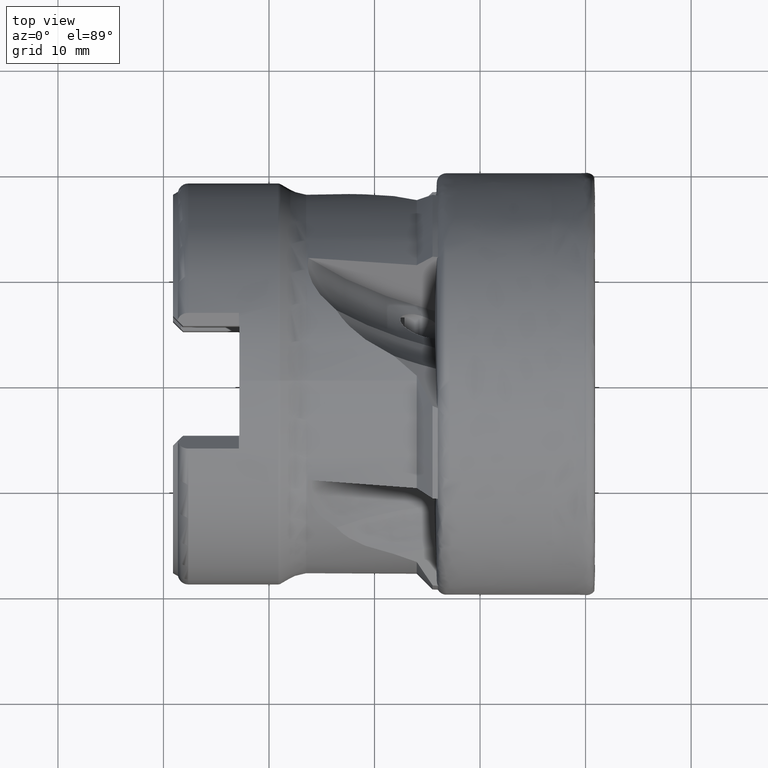
[diagram: clean part render]
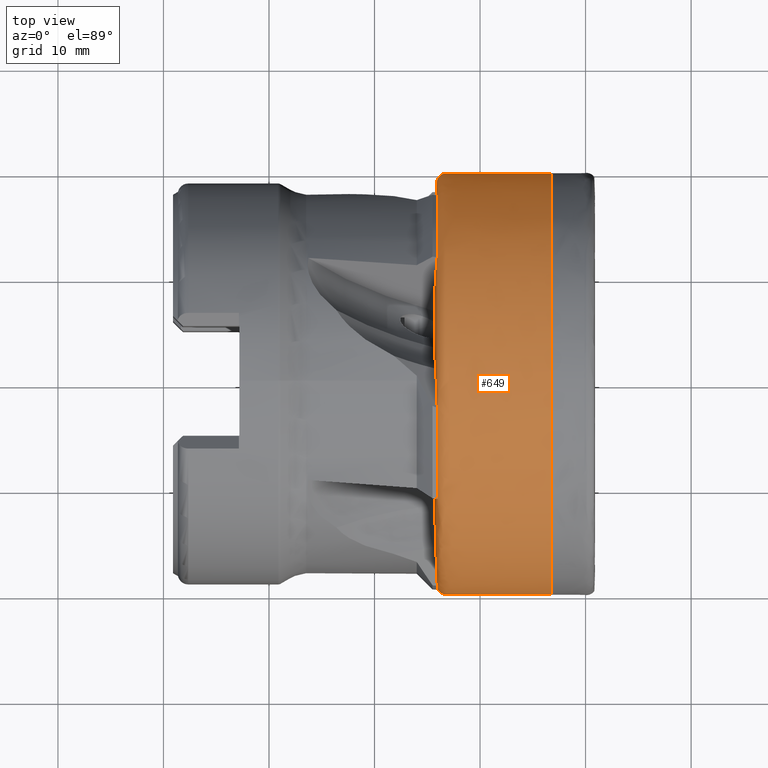
[diagram: same view with one face highlighted and labeled with its STEP entity id]
A machine part, top view. The second image highlights one B-rep face of the part: STEP entity #649.
In plain terms, the highlighted face is a freeform B-spline surface patch.
Its self-contained STEP definition (entity closure, byte-faithful):
#41 = VERTEX_POINT ( 'NONE', #5457 ) ;
#47 = VERTEX_POINT ( 'NONE', #5465 ) ;
#53 = VERTEX_POINT ( 'NONE', #5403 ) ;
#60 = VERTEX_POINT ( 'NONE', #5438 ) ;
#76 = VERTEX_POINT ( 'NONE', #5391 ) ;
#170 = VERTEX_POINT ( 'NONE', #5788 ) ;
#186 = VERTEX_POINT ( 'NONE', #5847 ) ;
#188 = VERTEX_POINT ( 'NONE', #5835 ) ;
#193 = VERTEX_POINT ( 'NONE', #5842 ) ;
#194 = VERTEX_POINT ( 'NONE', #5841 ) ;
#201 = VERTEX_POINT ( 'NONE', #5821 ) ;
#209 = VERTEX_POINT ( 'NONE', #5808 ) ;
#212 = VERTEX_POINT ( 'NONE', #5809 ) ;
#411 = VERTEX_POINT ( 'NONE', #5889 ) ;
#649 = ADVANCED_FACE ( 'NONE', ( #1496 ), #5939, .F. ) ;
#816 = AXIS2_PLACEMENT_3D ( 'NONE', #2239, #2240, #2241 ) ;
#819 = AXIS2_PLACEMENT_3D ( 'NONE', #2284, #2285, #2286 ) ;
#823 = AXIS2_PLACEMENT_3D ( 'NONE', #2459, #2460, #2461 ) ;
#824 = AXIS2_PLACEMENT_3D ( 'NONE', #2710, #2711, #2712 ) ;
#882 = AXIS2_PLACEMENT_3D ( 'NONE', #4060, #4061, #4062 ) ;
#916 = AXIS2_PLACEMENT_3D ( 'NONE', #4240, #4241, #4242 ) ;
#968 = AXIS2_PLACEMENT_3D ( 'NONE', #4773, #4774, #4775 ) ;
#1154 = VERTEX_POINT ( 'NONE', #6249 ) ;
#1266 = VERTEX_POINT ( 'NONE', #6256 ) ;
#1308 = VERTEX_POINT ( 'NONE', #6247 ) ;
#1309 = ORIENTED_EDGE ( 'NONE', *, *, #6037, .F. ) ;
#1310 = ORIENTED_EDGE ( 'NONE', *, *, #5574, .F. ) ;
#1311 = ORIENTED_EDGE ( 'NONE', *, *, #6178, .T. ) ;
#1312 = ORIENTED_EDGE ( 'NONE', *, *, #1602, .F. ) ;
#1313 = ORIENTED_EDGE ( 'NONE', *, *, #6044, .F. ) ;
#1314 = ORIENTED_EDGE ( 'NONE', *, *, #6035, .F. ) ;
#1315 = ORIENTED_EDGE ( 'NONE', *, *, #1638, .T. ) ;
#1316 = ORIENTED_EDGE ( 'NONE', *, *, #6012, .F. ) ;
#1326 = ORIENTED_EDGE ( 'NONE', *, *, #1671, .F. ) ;
#1327 = ORIENTED_EDGE ( 'NONE', *, *, #6033, .T. ) ;
#1328 = ORIENTED_EDGE ( 'NONE', *, *, #1595, .T. ) ;
#1329 = ORIENTED_EDGE ( 'NONE', *, *, #6016, .F. ) ;
#1330 = ORIENTED_EDGE ( 'NONE', *, *, #6047, .F. ) ;
#1331 = ORIENTED_EDGE ( 'NONE', *, *, #5763, .F. ) ;
#1332 = ORIENTED_EDGE ( 'NONE', *, *, #5772, .T. ) ;
#1333 = ORIENTED_EDGE ( 'NONE', *, *, #1615, .T. ) ;
#1334 = ORIENTED_EDGE ( 'NONE', *, *, #6030, .F. ) ;
#1496 = FACE_OUTER_BOUND ( 'NONE', #5734, .T. ) ;
#1595 = EDGE_CURVE ( 'NONE', #53, #60, #1723, .T. ) ;
#1602 = EDGE_CURVE ( 'NONE', #1154, #1308, #1720, .T. ) ;
#1615 = EDGE_CURVE ( 'NONE', #47, #41, #1722, .T. ) ;
#1638 = EDGE_CURVE ( 'NONE', #411, #76, #1726, .T. ) ;
#1671 = EDGE_CURVE ( 'NONE', #411, #1154, #5966, .T. ) ;
#1720 = CIRCLE ( 'NONE', #819, 19.97110165175830700 ) ;
#1722 = CIRCLE ( 'NONE', #823, 14.69634771529313600 ) ;
#1723 = CIRCLE ( 'NONE', #816, 14.69634771529313600 ) ;
#1726 = CIRCLE ( 'NONE', #824, 14.69634771529313600 ) ;
#1877 = CIRCLE ( 'NONE', #882, 19.50000000000000000 ) ;
#1951 = CIRCLE ( 'NONE', #916, 19.50000000000000000 ) ;
#2041 = CIRCLE ( 'NONE', #968, 19.50000000000000000 ) ;
#2239 = CARTESIAN_POINT ( 'NONE',  ( -14.26800032783875100, -2.686170997466963100E-015, 0.0000000000000000000 ) ) ;
#2240 = DIRECTION ( 'NONE',  ( 1.000000000000000000, 1.224147607940514700E-016, -0.0000000000000000000 ) ) ;
#2241 = DIRECTION ( 'NONE',  ( 2.360754535185147000E-016, -1.000000000000000000, 0.0000000000000000000 ) ) ;
#2284 = CARTESIAN_POINT ( 'NONE',  ( -3.209301626552753600, -1.332423041255550500E-015, 0.0000000000000000000 ) ) ;
#2285 = DIRECTION ( 'NONE',  ( 1.000000000000000000, 1.224147607940514700E-016, -0.0000000000000000000 ) ) ;
#2286 = DIRECTION ( 'NONE',  ( 6.514626131643860900E-017, -1.000000000000000000, 0.0000000000000000000 ) ) ;
#2459 = CARTESIAN_POINT ( 'NONE',  ( -14.26800032783875100, -2.686170997466963100E-015, 0.0000000000000000000 ) ) ;
#2460 = DIRECTION ( 'NONE',  ( 1.000000000000000000, 1.224147607940514700E-016, -0.0000000000000000000 ) ) ;
#2461 = DIRECTION ( 'NONE',  ( 2.360754535185147000E-016, -1.000000000000000000, 0.0000000000000000000 ) ) ;
#2710 = CARTESIAN_POINT ( 'NONE',  ( -14.26800032783875100, -2.686170997466963100E-015, 0.0000000000000000000 ) ) ;
#2711 = DIRECTION ( 'NONE',  ( 1.000000000000000000, 1.224147607940514700E-016, -0.0000000000000000000 ) ) ;
#2712 = DIRECTION ( 'NONE',  ( 2.360754535185147000E-016, -1.000000000000000000, 0.0000000000000000000 ) ) ;
#2913 = CARTESIAN_POINT ( 'NONE',  ( -14.26800032783875200, 14.69634771529313300, -1.799783518868518300E-015 ) ) ;
#2914 = CARTESIAN_POINT ( 'NONE',  ( -14.21580608215866600, 16.05574012467806700, -1.966261075162872100E-015 ) ) ;
#2926 = CARTESIAN_POINT ( 'NONE',  ( -14.16361183647857500, 17.41513253406299800, -2.132738631456719100E-015 ) ) ;
#2927 = CARTESIAN_POINT ( 'NONE',  ( -14.11141759079848300, 18.77452494344793300, -2.299216187750565700E-015 ) ) ;
#2928 = CARTESIAN_POINT ( 'NONE',  ( -14.10851882015919200, 18.85002305156809400, -2.308462039395669500E-015 ) ) ;
#2929 = CARTESIAN_POINT ( 'NONE',  ( -14.10272127888059600, 19.00101926780841700, -2.326953742685876300E-015 ) ) ;
#2930 = CARTESIAN_POINT ( 'NONE',  ( -14.09591330335324600, 19.23392777741435100, -2.355476808764185400E-015 ) ) ;
#2931 = CARTESIAN_POINT ( 'NONE',  ( -14.05106470714620000, 19.37955548754512600, -2.373311059672066700E-015 ) ) ;
#2932 = CARTESIAN_POINT ( 'NONE',  ( -14.01971025009153800, 19.44829605216129700, -2.381729350914944000E-015 ) ) ;
#2933 = CARTESIAN_POINT ( 'NONE',  ( -13.92271262157696300, 19.66095072319892300, -2.407772037135940400E-015 ) ) ;
#2934 = CARTESIAN_POINT ( 'NONE',  ( -13.75104970425022800, 19.82127491330401300, -2.427406087759749100E-015 ) ) ;
#2935 = CARTESIAN_POINT ( 'NONE',  ( -13.52821628863966900, 19.90732571645001800, -2.437944271823431000E-015 ) ) ;
#2936 = CARTESIAN_POINT ( 'NONE',  ( -13.45566115145857100, 19.93534408079494500, -2.441375531844667100E-015 ) ) ;
#2937 = CARTESIAN_POINT ( 'NONE',  ( -13.30353024252727100, 19.97320047968438700, -2.446011603617386900E-015 ) ) ;
#2938 = CARTESIAN_POINT ( 'NONE',  ( -13.06446505624465400, 19.97110165175830300, -2.445754571327222900E-015 ) ) ;
#2939 = CARTESIAN_POINT ( 'NONE',  ( -12.90891086411942200, 19.97110165175830700, -2.445754571327223700E-015 ) ) ;
#2940 = CARTESIAN_POINT ( 'NONE',  ( -12.83113376805680700, 19.97110165175830300, -2.445754571327223300E-015 ) ) ;
#2941 = CARTESIAN_POINT ( 'NONE',  ( -9.623856387555456100, 19.97110165175830300, -2.445754571327223300E-015 ) ) ;
#2942 = CARTESIAN_POINT ( 'NONE',  ( -6.416579007054106200, 19.97110165175830700, -2.445754571327223300E-015 ) ) ;
#2943 = CARTESIAN_POINT ( 'NONE',  ( -3.209301626552756300, 19.97110165175831000, -2.445754571327223300E-015 ) ) ;
#3973 = B_SPLINE_CURVE_WITH_KNOTS ( 'NONE', 3,
 ( #4266, #4267, #4272, #4273, #4274, #4275, #4276, #4277, #4278, #4279, #4280 ),
 .UNSPECIFIED., .F., .F.,
 ( 4, 2, 2, 2, 1, 4 ),
 ( 7.111467947168715000E-005, 0.0003723832862610233500, 0.0006736518930503596200, 0.001276189106629031800, 0.002481263533786379300, 0.004891412388101071600 ),
 .UNSPECIFIED. ) ;
#3999 = B_SPLINE_CURVE_WITH_KNOTS ( 'NONE', 3,
 ( #4508, #4560, #4565, #4566, #4567, #4568 ),
 .UNSPECIFIED., .F., .F.,
 ( 4, 2, 4 ),
 ( 3.034133145081244000E-016, 0.001254293743624459200, 0.002508587487248611300 ),
 .UNSPECIFIED. ) ;
#4002 = B_SPLINE_CURVE_WITH_KNOTS ( 'NONE', 3,
 ( #4569, #4577, #4588, #4589, #4590, #4591, #4592, #4593, #4594, #4595, #4596, #4597 ),
 .UNSPECIFIED., .F., .F.,
 ( 4, 2, 2, 2, 2, 4 ),
 ( 0.0005273628585436776400, 0.001096369417611880200, 0.001380872697145982000, 0.001665375976680083400, 0.002803389094816484400, 0.005079415331089286500 ),
 .UNSPECIFIED. ) ;
#4009 = B_SPLINE_CURVE_WITH_KNOTS ( 'NONE', 3,
 ( #4637, #4645, #4672, #4673, #4674, #4675 ),
 .UNSPECIFIED., .F., .F.,
 ( 4, 2, 4 ),
 ( 1.777054657484526000E-016, 0.001254293743624378100, 0.002508587487248578300 ),
 .UNSPECIFIED. ) ;
#4011 = B_SPLINE_CURVE_WITH_KNOTS ( 'NONE', 3,
 ( #4679, #4680, #4685, #4686, #4687, #4688, #4689, #4690, #4691, #4692, #4693 ),
 .UNSPECIFIED., .F., .F.,
 ( 4, 2, 2, 2, 1, 4 ),
 ( 7.111467947168597100E-005, 0.0003723832862610313700, 0.0006736518930503767500, 0.001276189106629060000, 0.002481263533786419200, 0.004891412388101137500 ),
 .UNSPECIFIED. ) ;
#4013 = B_SPLINE_CURVE_WITH_KNOTS ( 'NONE', 3,
 ( #4695, #4694, #4707, #4708, #4709, #4710, #4711, #4712, #4713, #4714, #4715, #4716 ),
 .UNSPECIFIED., .F., .F.,
 ( 4, 2, 2, 2, 2, 4 ),
 ( 0.0005273628585410930100, 0.001096369417609764700, 0.001380872697144101300, 0.001665375976678437300, 0.002803389094815786200, 0.005079415331090490400 ),
 .UNSPECIFIED. ) ;
#4014 = B_SPLINE_CURVE_WITH_KNOTS ( 'NONE', 3,
 ( #4717, #4718, #4723, #4724, #4725, #4726, #4727, #4728, #4729, #4730, #4731, #4732 ),
 .UNSPECIFIED., .F., .F.,
 ( 4, 2, 2, 2, 2, 4 ),
 ( 0.0005273628585470978600, 0.001096369417615530500, 0.001380872697149746800, 0.001665375976683963100, 0.002803389094820835500, 0.005079415331094578300 ),
 .UNSPECIFIED. ) ;
#4019 = B_SPLINE_CURVE_WITH_KNOTS ( 'NONE', 3,
 ( #4754, #4755, #4760, #4761, #4762, #4763 ),
 .UNSPECIFIED., .F., .F.,
 ( 4, 2, 4 ),
 ( 4.926097358014250200E-017, 0.001254293743624316700, 0.002508587487248584400 ),
 .UNSPECIFIED. ) ;
#4041 =( BOUNDED_CURVE ( )  B_SPLINE_CURVE ( 3, ( #5171, #5172, #5177, #5178, #5179, #5180, #5181, #5182, #5183, #5184, #5185, #5186 ),
 .UNSPECIFIED., .F., .F. ) 
 B_SPLINE_CURVE_WITH_KNOTS ( ( 4, 3, 1, 1, 3, 4 ),
 ( 0.1551371755131661900, 0.1748335582058125300, 0.1821841475971367800, 0.1895347369884609900, 0.1968853263797852300, 0.5000000000000000000 ),
 .UNSPECIFIED. ) 
 CURVE ( )  GEOMETRIC_REPRESENTATION_ITEM ( )  RATIONAL_B_SPLINE_CURVE ( ( 0.9892622004134785700, 0.9547140600188639400, 0.9582933265477044900, 1.000000000000000000, 1.000000000000000000, 1.000000000000000000, 1.000000000000000000, 1.000000000000000000, 1.000000000000000000, 1.000000000000000000, 1.000000000000000000, 1.000000000000000000 ) ) 
 REPRESENTATION_ITEM ( '' )  );
#4060 = CARTESIAN_POINT ( 'NONE',  ( -13.99402628904241300, -2.652632531043929400E-015, 0.0000000000000000000 ) ) ;
#4061 = DIRECTION ( 'NONE',  ( -1.000000000000000000, -1.224147607940514700E-016, 0.0000000000000000000 ) ) ;
#4062 = DIRECTION ( 'NONE',  ( -8.896017825522088100E-017, 1.000000000000000000, 0.0000000000000000000 ) ) ;
#4240 = CARTESIAN_POINT ( 'NONE',  ( -13.99402628904241300, -2.652632531043929400E-015, 0.0000000000000000000 ) ) ;
#4241 = DIRECTION ( 'NONE',  ( -1.000000000000000000, -1.224147607940514700E-016, 0.0000000000000000000 ) ) ;
#4242 = DIRECTION ( 'NONE',  ( -8.896017825522088100E-017, 1.000000000000000000, 3.552713678800500900E-015 ) ) ;
#4266 = CARTESIAN_POINT ( 'NONE',  ( -13.99402628904241500, -11.16282670107047400, 15.98878669699073100 ) ) ;
#4267 = CARTESIAN_POINT ( 'NONE',  ( -14.04177573269446800, -11.10729541618247800, 15.91946168751539000 ) ) ;
#4272 = CARTESIAN_POINT ( 'NONE',  ( -14.07413387450636400, -11.04776896731670800, 15.84234689433353100 ) ) ;
#4273 = CARTESIAN_POINT ( 'NONE',  ( -14.10284375111478800, -10.92836796405926600, 15.68227882239864000 ) ) ;
#4274 = CARTESIAN_POINT ( 'NONE',  ( -14.10248798662355600, -10.86921448308165800, 15.60080808702304700 ) ) ;
#4275 = CARTESIAN_POINT ( 'NONE',  ( -14.11352642977215100, -10.69130388572579400, 15.35757817006916200 ) ) ;
#4276 = CARTESIAN_POINT ( 'NONE',  ( -14.12150763103672100, -10.57267368257386100, 15.19548566197628900 ) ) ;
#4277 = CARTESIAN_POINT ( 'NONE',  ( -14.14463961406317900, -10.21681325440901700, 14.70912887330857000 ) ) ;
#4278 = CARTESIAN_POINT ( 'NONE',  ( -14.19090268853979900, -9.505092444192609200, 13.73641522673631200 ) ) ;
#4279 = CARTESIAN_POINT ( 'NONE',  ( -14.23716260649884900, -8.793371772533657100, 12.76370130104139700 ) ) ;
#4280 = CARTESIAN_POINT ( 'NONE',  ( -14.26800032783874700, -8.318891445214006800, 12.11522518534208000 ) ) ;
#4508 = CARTESIAN_POINT ( 'NONE',  ( -14.18631093673279900, 16.38905425615517700, 3.800496006708649500 ) ) ;
#4560 = CARTESIAN_POINT ( 'NONE',  ( -14.20124454978105900, 16.04565309455056600, 3.559593312194226000 ) ) ;
#4565 = CARTESIAN_POINT ( 'NONE',  ( -14.21562142229881200, 15.71984105028122900, 3.297789811377370500 ) ) ;
#4566 = CARTESIAN_POINT ( 'NONE',  ( -14.24302521189785700, 15.10314685852142700, 2.732663496578172400 ) ) ;
#4567 = CARTESIAN_POINT ( 'NONE',  ( -14.25605197436113000, 14.81228025361912000, 2.428892670520108200 ) ) ;
#4568 = CARTESIAN_POINT ( 'NONE',  ( -14.26800032779129900, 14.54411533310348200, 2.109821165207939100 ) ) ;
#4569 = CARTESIAN_POINT ( 'NONE',  ( -13.99402628904241500, 17.71115096916131300, 8.158745696954660800 ) ) ;
#4577 = CARTESIAN_POINT ( 'NONE',  ( -14.05334780861715800, 17.67172998627272000, 7.981148113705935500 ) ) ;
#4588 = CARTESIAN_POINT ( 'NONE',  ( -14.08544226921973000, 17.62354644874891500, 7.799543349084122400 ) ) ;
#4589 = CARTESIAN_POINT ( 'NONE',  ( -14.10087603275969800, 17.54175298056676600, 7.527382942168141100 ) ) ;
#4590 = CARTESIAN_POINT ( 'NONE',  ( -14.10215117010847100, 17.51330479493738000, 7.436481422721994000 ) ) ;
#4591 = CARTESIAN_POINT ( 'NONE',  ( -14.10644607932190000, 17.45694872257691100, 7.254728546434483500 ) ) ;
#4592 = CARTESIAN_POINT ( 'NONE',  ( -14.10876805021913100, 17.42882543506134100, 7.163839217656715200 ) ) ;
#4593 = CARTESIAN_POINT ( 'NONE',  ( -14.12033719955721300, 17.28823238766319300, 6.709384399919476200 ) ) ;
#4594 = CARTESIAN_POINT ( 'NONE',  ( -14.12932922248565300, 17.17579482492228800, 6.345803052757132100 ) ) ;
#4595 = CARTESIAN_POINT ( 'NONE',  ( -14.15540472283816900, 16.83855027085011700, 5.255017109960598500 ) ) ;
#4596 = CARTESIAN_POINT ( 'NONE',  ( -14.17159632296116800, 16.61381451867277900, 4.527769854031767200 ) ) ;
#4597 = CARTESIAN_POINT ( 'NONE',  ( -14.18631093673279900, 16.38905425615517700, 3.800496006708649500 ) ) ;
#4637 = CARTESIAN_POINT ( 'NONE',  ( -14.18631093673279300, -15.60500225378719500, 6.287191262201723400 ) ) ;
#4645 = CARTESIAN_POINT ( 'NONE',  ( -14.20124454978105400, -15.18552838122047200, 6.287560382376040200 ) ) ;
#4672 = CARTESIAN_POINT ( 'NONE',  ( -14.21562142229881000, -14.76847446008062700, 6.315139143999915400 ) ) ;
#4673 = CARTESIAN_POINT ( 'NONE',  ( -14.24302521189785500, -13.93916501446868500, 6.424342263221209500 ) ) ;
#4674 = CARTESIAN_POINT ( 'NONE',  ( -14.25605197436112600, -13.52666525256973200, 6.506342525688629600 ) ) ;
#4675 = CARTESIAN_POINT ( 'NONE',  ( -14.26800032779129700, -13.12398551276461900, 6.613897522075746800 ) ) ;
#4679 = CARTESIAN_POINT ( 'NONE',  ( -13.99402628904241300, 11.75673661993313400, 15.55728588313280100 ) ) ;
#4680 = CARTESIAN_POINT ( 'NONE',  ( -14.04177573269446100, 11.70796472867926100, 15.48304988671874800 ) ) ;
#4685 = CARTESIAN_POINT ( 'NONE',  ( -14.07413387450636400, 11.65301888643521300, 15.40260708802214000 ) ) ;
#4686 = CARTESIAN_POINT ( 'NONE',  ( -14.10284375111478600, 11.53768204272269100, 15.23958623133726100 ) ) ;
#4687 = CARTESIAN_POINT ( 'NONE',  ( -14.10248798662355600, 11.47847819985489800, 15.15815208601668300 ) ) ;
#4688 = CARTESIAN_POINT ( 'NONE',  ( -14.11352642977215100, 11.30213020044034200, 14.91378687520426600 ) ) ;
#4689 = CARTESIAN_POINT ( 'NONE',  ( -14.12150763103672100, 11.18462981319608000, 14.75087350780564500 ) ) ;
#4690 = CARTESIAN_POINT ( 'NONE',  ( -14.14463961406318000, 10.83204394001774100, 14.26213761567993300 ) ) ;
#4691 = CARTESIAN_POINT ( 'NONE',  ( -14.19090268853980100, 10.12687211356315100, 13.28466585388949800 ) ) ;
#4692 = CARTESIAN_POINT ( 'NONE',  ( -14.23716260649885100, 9.421699978830517400, 12.30719413762138900 ) ) ;
#4693 = CARTESIAN_POINT ( 'NONE',  ( -14.26800032783875100, 8.951585027971273000, 11.65554639027283700 ) ) ;
#4694 = CARTESIAN_POINT ( 'NONE',  ( -14.05334780861715100, -2.465696077695992600, 19.23302131161604600 ) ) ;
#4695 = CARTESIAN_POINT ( 'NONE',  ( -13.99402628904241300, -2.624007911235298100, 19.32264429320621300 ) ) ;
#4707 = CARTESIAN_POINT ( 'NONE',  ( -14.08544226921975600, -2.306114080587836400, 19.13384707090457600 ) ) ;
#4708 = CARTESIAN_POINT ( 'NONE',  ( -14.10087603275969700, -2.069759884796846800, 18.97605558614720800 ) ) ;
#4709 = CARTESIAN_POINT ( 'NONE',  ( -14.10215117010846900, -1.991147773954988500, 18.92227341872893500 ) ) ;
#4710 = CARTESIAN_POINT ( 'NONE',  ( -14.10644607932189800, -1.833813554898807500, 18.81524044042479500 ) ) ;
#4711 = CARTESIAN_POINT ( 'NONE',  ( -14.10876805021913100, -1.755118111035685300, 18.76177253882448800 ) ) ;
#4712 = CARTESIAN_POINT ( 'NONE',  ( -14.12033719955720200, -1.361626236403261000, 18.49445300916102400 ) ) ;
#4713 = CARTESIAN_POINT ( 'NONE',  ( -14.12932922248565500, -1.046805226825931400, 18.28062753488779200 ) ) ;
#4714 = CARTESIAN_POINT ( 'NONE',  ( -14.15540472283816700, -0.1022822071746422000, 17.63920401832300700 ) ) ;
#4715 = CARTESIAN_POINT ( 'NONE',  ( -14.17159632296116300, 0.5274814274548641500, 17.21166162971011800 ) ) ;
#4716 = CARTESIAN_POINT ( 'NONE',  ( -14.18631093673279500, 1.157263325431218800, 16.78408802717096300 ) ) ;
#4717 = CARTESIAN_POINT ( 'NONE',  ( -13.99402628904241100, -19.18778980505310700, 3.475445640072682500 ) ) ;
#4718 = CARTESIAN_POINT ( 'NONE',  ( -14.05334780861720200, -19.05363223742753900, 3.598314116568815300 ) ) ;
#4723 = CARTESIAN_POINT ( 'NONE',  ( -14.08544226921973700, -18.90999838044779200, 3.719439089017662100 ) ) ;
#4724 = CARTESIAN_POINT ( 'NONE',  ( -14.10087603275969500, -18.68689229746218700, 3.895465036720684000 ) ) ;
#4725 = CARTESIAN_POINT ( 'NONE',  ( -14.10215117010846500, -18.61144993846473400, 3.953609993270009100 ) ) ;
#4726 = CARTESIAN_POINT ( 'NONE',  ( -14.10644607932189500, -18.46103657950502000, 4.070168718285064100 ) ) ;
#4727 = CARTESIAN_POINT ( 'NONE',  ( -14.10876805021912400, -18.38586735374183300, 4.128490042725752000 ) ) ;
#4728 = CARTESIAN_POINT ( 'NONE',  ( -14.12033719955719000, -18.01003569671255600, 4.420116776609807700 ) ) ;
#4729 = CARTESIAN_POINT ( 'NONE',  ( -14.12932922248565500, -17.70939054390941100, 4.653453643854264000 ) ) ;
#4730 = CARTESIAN_POINT ( 'NONE',  ( -14.15540472283816500, -16.80748686412487200, 5.353537649274185700 ) ) ;
#4731 = CARTESIAN_POINT ( 'NONE',  ( -14.17159632296116300, -16.20626222390228600, 5.820360593817272700 ) ) ;
#4732 = CARTESIAN_POINT ( 'NONE',  ( -14.18631093673279300, -15.60500225378719500, 6.287191262201723400 ) ) ;
#4754 = CARTESIAN_POINT ( 'NONE',  ( -14.18631093673279500, 1.157263325431218800, 16.78408802717096300 ) ) ;
#4755 = CARTESIAN_POINT ( 'NONE',  ( -14.20124454978104600, 1.287238934897816800, 16.38525873165754700 ) ) ;
#4760 = CARTESIAN_POINT ( 'NONE',  ( -14.21562142229880800, 1.442344645054423700, 15.99713918833673500 ) ) ;
#4761 = CARTESIAN_POINT ( 'NONE',  ( -14.24302521189785500, 1.802473695479358800, 15.24216465574046500 ) ) ;
#4762 = CARTESIAN_POINT ( 'NONE',  ( -14.25605197436113000, 2.007930016039325900, 14.87519354386189000 ) ) ;
#4763 = CARTESIAN_POINT ( 'NONE',  ( -14.26800032779129900, 2.234655779103664300, 14.52545867505373400 ) ) ;
#4773 = CARTESIAN_POINT ( 'NONE',  ( -13.99402628904241300, -2.652632531043929400E-015, 0.0000000000000000000 ) ) ;
#4774 = DIRECTION ( 'NONE',  ( -1.000000000000000000, -1.224147607940514700E-016, 0.0000000000000000000 ) ) ;
#4775 = DIRECTION ( 'NONE',  ( -8.896017825522088100E-017, 1.000000000000000000, -4.440892098500626200E-015 ) ) ;
#5171 = CARTESIAN_POINT ( 'NONE',  ( -13.99402628904241100, -19.50000000000000400, 0.0000000000000000000 ) ) ;
#5172 = CARTESIAN_POINT ( 'NONE',  ( -13.89274318621725100, -19.68799895554889200, 0.0000000000000000000 ) ) ;
#5177 = CARTESIAN_POINT ( 'NONE',  ( -13.73109384919031900, -19.82898119627179800, 0.0000000000000000000 ) ) ;
#5178 = CARTESIAN_POINT ( 'NONE',  ( -13.52821628863966400, -19.90732571645002500, 0.0000000000000000000 ) ) ;
#5179 = CARTESIAN_POINT ( 'NONE',  ( -13.45566115145856600, -19.93534408079495200, 0.0000000000000000000 ) ) ;
#5180 = CARTESIAN_POINT ( 'NONE',  ( -13.30353024252726600, -19.97320047968439400, 0.0000000000000000000 ) ) ;
#5181 = CARTESIAN_POINT ( 'NONE',  ( -13.06446505624464800, -19.97110165175831000, 0.0000000000000000000 ) ) ;
#5182 = CARTESIAN_POINT ( 'NONE',  ( -12.90891086411941800, -19.97110165175831400, 0.0000000000000000000 ) ) ;
#5183 = CARTESIAN_POINT ( 'NONE',  ( -12.83113376805680200, -19.97110165175831000, 0.0000000000000000000 ) ) ;
#5184 = CARTESIAN_POINT ( 'NONE',  ( -9.623856387555450800, -19.97110165175831000, 0.0000000000000000000 ) ) ;
#5185 = CARTESIAN_POINT ( 'NONE',  ( -6.416579007054101800, -19.97110165175831000, 0.0000000000000000000 ) ) ;
#5186 = CARTESIAN_POINT ( 'NONE',  ( -3.209301626552751000, -19.97110165175831000, 0.0000000000000000000 ) ) ;
#5391 = CARTESIAN_POINT ( 'NONE',  ( -14.26800032779129900, 14.54411533310348200, 2.109821165207939100 ) ) ;
#5403 = CARTESIAN_POINT ( 'NONE',  ( -14.26800032783875100, 8.951585027971273000, 11.65554639027283700 ) ) ;
#5438 = CARTESIAN_POINT ( 'NONE',  ( -14.26800032779129900, 2.234655779103664300, 14.52545867505373400 ) ) ;
#5457 = CARTESIAN_POINT ( 'NONE',  ( -14.26800032779129700, -13.12398551276461900, 6.613897522075746800 ) ) ;
#5465 = CARTESIAN_POINT ( 'NONE',  ( -14.26800032783874700, -8.318891445214006800, 12.11522518534208000 ) ) ;
#5574 = EDGE_CURVE ( 'NONE', #1266, #170, #1877, .T. ) ;
#5734 = EDGE_LOOP ( 'NONE', ( #1326, #1315, #1316, #1329, #1330, #1327, #1328, #1313, #1314, #1331, #1332, #1333, #1334, #1309, #1310, #1311, #1312 ) ) ;
#5763 = EDGE_CURVE ( 'NONE', #186, #194, #1951, .T. ) ;
#5772 = EDGE_CURVE ( 'NONE', #186, #47, #3973, .T. ) ;
#5788 = CARTESIAN_POINT ( 'NONE',  ( -13.99402628904241100, -19.18778980505310700, 3.475445640072682500 ) ) ;
#5808 = CARTESIAN_POINT ( 'NONE',  ( -14.18631093673279500, 1.157263325431218800, 16.78408802717096300 ) ) ;
#5809 = CARTESIAN_POINT ( 'NONE',  ( -14.18631093673279300, -15.60500225378719500, 6.287191262201723400 ) ) ;
#5821 = CARTESIAN_POINT ( 'NONE',  ( -13.99402628904241500, 17.71115096916131300, 8.158745696954660800 ) ) ;
#5835 = CARTESIAN_POINT ( 'NONE',  ( -13.99402628904241300, 11.75673661993313400, 15.55728588313280100 ) ) ;
#5841 = CARTESIAN_POINT ( 'NONE',  ( -13.99402628904241300, -2.624007911235298100, 19.32264429320621300 ) ) ;
#5842 = CARTESIAN_POINT ( 'NONE',  ( -14.18631093673279900, 16.38905425615517700, 3.800496006708649500 ) ) ;
#5847 = CARTESIAN_POINT ( 'NONE',  ( -13.99402628904241500, -11.16282670107047400, 15.98878669699073100 ) ) ;
#5889 = CARTESIAN_POINT ( 'NONE',  ( -14.26800032783875200, 14.69634771529313300, -1.799783518868518300E-015 ) ) ;
#5939 =( BOUNDED_SURFACE ( )  B_SPLINE_SURFACE ( 3, 3, ( 
 ( #6772, #6795, #6797, #6799 ),
 ( #6801, #6804, #6807, #6810 ),
 ( #6815, #6816, #6817, #6820 ),
 ( #6822, #6826, #6829, #6832 ),
 ( #6835, #6838, #6842, #6844 ),
 ( #6845, #6848, #6851, #6830 ),
 ( #6839, #6818, #6823, #6805 ),
 ( #6813, #6808, #6849, #6833 ),
 ( #6824, #6841, #6827, #6811 ),
 ( #6836, #6846, #6803, #6819 ),
 ( #6647, #6639, #6710, #6599 ),
 ( #6622, #6619, #6719, #6617 ),
 ( #6625, #6765, #6769, #6768 ),
 ( #6766, #6767, #6760, #6757 ),
 ( #6756, #6758, #6754, #6753 ),
 ( #6755, #6751, #6749, #6748 ),
 ( #6744, #6735, #6742, #6745 ),
 ( #6593, #6740, #6596, #6598 ),
 ( #6601, #6733, #6701, #6680 ),
 ( #6634, #6675, #6595, #6663 ) ),
 .UNSPECIFIED., .F., .F., .F. ) 
 B_SPLINE_SURFACE_WITH_KNOTS ( ( 4, 3, 1, 1, 3, 3, 1, 1, 3, 4 ),
 ( 4, 4 ),
 ( 0.0000000000000000000, 0.1313957303242599700, 0.1386932030672753700, 0.1459906758102907700, 0.1532881485533061600, 0.1748335582058125300, 0.1821841475971367800, 0.1895347369884609900, 0.1968853263797852300, 0.5000000000000001100 ),
 ( 0.0000000000000000000, 1.000000000000000000 ),
 .UNSPECIFIED. ) 
 GEOMETRIC_REPRESENTATION_ITEM ( )  RATIONAL_B_SPLINE_SURFACE ( (
 ( 1.000000000000000000, 0.3333333333333334300, 0.3333333333333334300, 1.000000000000000000),
 ( 1.000000000000000000, 0.3333333333333334300, 0.3333333333333334300, 1.000000000000000000),
 ( 1.000000000000000000, 0.3333333333333334300, 0.3333333333333334300, 1.000000000000000000),
 ( 1.000000000000000000, 0.3333333333333334300, 0.3333333333333334300, 1.000000000000000000),
 ( 1.000000000000000000, 0.3333333333333334300, 0.3333333333333334300, 1.000000000000000000),
 ( 1.000000000000000000, 0.3333333333333334300, 0.3333333333333334300, 1.000000000000000000),
 ( 1.000000000000000000, 0.3333333333333334300, 0.3333333333333334300, 1.000000000000000000),
 ( 1.000000000000000000, 0.3333333333333334300, 0.3333333333333334300, 1.000000000000000000),
 ( 1.000000000000000000, 0.3333333333333334300, 0.3333333333333334300, 1.000000000000000000),
 ( 0.9543780510972450500, 0.3181260170324151100, 0.3181260170324151100, 0.9543780510972450500),
 ( 0.9543780510972450500, 0.3181260170324151100, 0.3181260170324151100, 0.9543780510972450500),
 ( 1.000000000000000000, 0.3333333333333334300, 0.3333333333333334300, 1.000000000000000000),
 ( 1.000000000000000000, 0.3333333333333334300, 0.3333333333333334300, 1.000000000000000000),
 ( 1.000000000000000000, 0.3333333333333334300, 0.3333333333333334300, 1.000000000000000000),
 ( 1.000000000000000000, 0.3333333333333334300, 0.3333333333333334300, 1.000000000000000000),
 ( 1.000000000000000000, 0.3333333333333334300, 0.3333333333333334300, 1.000000000000000000),
 ( 1.000000000000000000, 0.3333333333333334300, 0.3333333333333334300, 1.000000000000000000),
 ( 1.000000000000000000, 0.3333333333333334300, 0.3333333333333334300, 1.000000000000000000),
 ( 1.000000000000000000, 0.3333333333333334300, 0.3333333333333334300, 1.000000000000000000),
 ( 1.000000000000000000, 0.3333333333333334300, 0.3333333333333334300, 1.000000000000000000) ) ) 
 REPRESENTATION_ITEM ( '' )  SURFACE ( )  );
#5966 =( BOUNDED_CURVE ( )  B_SPLINE_CURVE ( 3, ( #2913, #2914, #2926, #2927, #2928, #2929, #2930, #2931, #2932, #2933, #2934, #2935, #2936, #2937, #2938, #2939, #2940, #2941, #2942, #2943 ),
 .UNSPECIFIED., .F., .F. ) 
 B_SPLINE_CURVE_WITH_KNOTS ( ( 4, 3, 1, 1, 3, 3, 1, 1, 3, 4 ),
 ( 0.0000000000000000000, 0.1313957303242599700, 0.1386932030672753700, 0.1459906758102907700, 0.1532881485533061600, 0.1748335582058125300, 0.1821841475971367800, 0.1895347369884609900, 0.1968853263797852300, 0.5000000000000000000 ),
 .UNSPECIFIED. ) 
 CURVE ( )  GEOMETRIC_REPRESENTATION_ITEM ( )  RATIONAL_B_SPLINE_CURVE ( ( 1.000000000000000000, 1.000000000000000000, 1.000000000000000000, 1.000000000000000000, 1.000000000000000000, 1.000000000000000000, 1.000000000000000000, 1.000000000000000000, 1.000000000000000000, 0.9543780510972450500, 0.9543780510972450500, 1.000000000000000000, 1.000000000000000000, 1.000000000000000000, 1.000000000000000000, 1.000000000000000000, 1.000000000000000000, 1.000000000000000000, 1.000000000000000000, 1.000000000000000000 ) ) 
 REPRESENTATION_ITEM ( '' )  );
#6012 = EDGE_CURVE ( 'NONE', #193, #76, #3999, .T. ) ;
#6016 = EDGE_CURVE ( 'NONE', #201, #193, #4002, .T. ) ;
#6030 = EDGE_CURVE ( 'NONE', #212, #41, #4009, .T. ) ;
#6033 = EDGE_CURVE ( 'NONE', #188, #53, #4011, .T. ) ;
#6035 = EDGE_CURVE ( 'NONE', #194, #209, #4013, .T. ) ;
#6037 = EDGE_CURVE ( 'NONE', #170, #212, #4014, .T. ) ;
#6044 = EDGE_CURVE ( 'NONE', #209, #60, #4019, .T. ) ;
#6047 = EDGE_CURVE ( 'NONE', #188, #201, #2041, .T. ) ;
#6178 = EDGE_CURVE ( 'NONE', #1266, #1308, #4041, .T. ) ;
#6247 = CARTESIAN_POINT ( 'NONE',  ( -3.209301626552751000, -19.97110165175831000, 0.0000000000000000000 ) ) ;
#6249 = CARTESIAN_POINT ( 'NONE',  ( -3.209301626552756300, 19.97110165175831000, -2.445754571327223300E-015 ) ) ;
#6256 = CARTESIAN_POINT ( 'NONE',  ( -13.99402628904241100, -19.50000000000000400, 0.0000000000000000000 ) ) ;
#6593 = CARTESIAN_POINT ( 'NONE',  ( -9.623856387555452600, 19.97110165175830300, -2.445754571327223300E-015 ) ) ;
#6595 = CARTESIAN_POINT ( 'NONE',  ( -3.209301626552747900, -19.97110165175830000, 39.94220330351662100 ) ) ;
#6596 = CARTESIAN_POINT ( 'NONE',  ( -9.623856387555447300, -19.97110165175830000, 39.94220330351662100 ) ) ;
#6598 = CARTESIAN_POINT ( 'NONE',  ( -9.623856387555447300, -19.97110165175831000, 4.891509142654445800E-015 ) ) ;
#6599 = CARTESIAN_POINT ( 'NONE',  ( -13.75104970425022100, -19.82127491330402000, 4.854812175519498100E-015 ) ) ;
#6601 = CARTESIAN_POINT ( 'NONE',  ( -6.416579007054102700, 19.97110165175830700, -2.445754571327223300E-015 ) ) ;
#6617 = CARTESIAN_POINT ( 'NONE',  ( -13.52821628863966400, -19.90732571645002500, 4.875888543646862100E-015 ) ) ;
#6619 = CARTESIAN_POINT ( 'NONE',  ( -13.52821628863966900, 19.90732571645002100, 39.81465143290002800 ) ) ;
#6622 = CARTESIAN_POINT ( 'NONE',  ( -13.52821628863966900, 19.90732571645001800, -2.437944271823431000E-015 ) ) ;
#6625 = CARTESIAN_POINT ( 'NONE',  ( -13.45566115145857100, 19.93534408079494500, -2.441375531844667100E-015 ) ) ;
#6634 = CARTESIAN_POINT ( 'NONE',  ( -3.209301626552752800, 19.97110165175830700, -2.445754571327223300E-015 ) ) ;
#6639 = CARTESIAN_POINT ( 'NONE',  ( -13.75104970425023000, 19.82127491330401300, 39.64254982660802500 ) ) ;
#6647 = CARTESIAN_POINT ( 'NONE',  ( -13.75104970425022800, 19.82127491330401300, -2.427406087759749100E-015 ) ) ;
#6663 = CARTESIAN_POINT ( 'NONE',  ( -3.209301626552747900, -19.97110165175831000, 4.891509142654446600E-015 ) ) ;
#6675 = CARTESIAN_POINT ( 'NONE',  ( -3.209301626552752300, 19.97110165175831000, 39.94220330351660700 ) ) ;
#6680 = CARTESIAN_POINT ( 'NONE',  ( -6.416579007054097300, -19.97110165175831000, 4.891509142654446600E-015 ) ) ;
#6701 = CARTESIAN_POINT ( 'NONE',  ( -6.416579007054097300, -19.97110165175830000, 39.94220330351662100 ) ) ;
#6710 = CARTESIAN_POINT ( 'NONE',  ( -13.75104970425022400, -19.82127491330400900, 39.64254982660802500 ) ) ;
#6719 = CARTESIAN_POINT ( 'NONE',  ( -13.52821628863966400, -19.90732571645001400, 39.81465143290004200 ) ) ;
#6733 = CARTESIAN_POINT ( 'NONE',  ( -6.416579007054102700, 19.97110165175831000, 39.94220330351660700 ) ) ;
#6735 = CARTESIAN_POINT ( 'NONE',  ( -12.83113376805680700, 19.97110165175831000, 39.94220330351660700 ) ) ;
#6740 = CARTESIAN_POINT ( 'NONE',  ( -9.623856387555452600, 19.97110165175831000, 39.94220330351660700 ) ) ;
#6742 = CARTESIAN_POINT ( 'NONE',  ( -12.83113376805680200, -19.97110165175830000, 39.94220330351662100 ) ) ;
#6744 = CARTESIAN_POINT ( 'NONE',  ( -12.83113376805680700, 19.97110165175830300, -2.445754571327223300E-015 ) ) ;
#6745 = CARTESIAN_POINT ( 'NONE',  ( -12.83113376805680200, -19.97110165175831000, 4.891509142654445800E-015 ) ) ;
#6748 = CARTESIAN_POINT ( 'NONE',  ( -12.90891086411941800, -19.97110165175831400, 4.891509142654446600E-015 ) ) ;
#6749 = CARTESIAN_POINT ( 'NONE',  ( -12.90891086411941800, -19.97110165175830300, 39.94220330351662100 ) ) ;
#6751 = CARTESIAN_POINT ( 'NONE',  ( -12.90891086411942400, 19.97110165175831000, 39.94220330351662100 ) ) ;
#6753 = CARTESIAN_POINT ( 'NONE',  ( -13.06446505624464800, -19.97110165175831000, 4.891509142654445800E-015 ) ) ;
#6754 = CARTESIAN_POINT ( 'NONE',  ( -13.06446505624464600, -19.97110165175830000, 39.94220330351662100 ) ) ;
#6755 = CARTESIAN_POINT ( 'NONE',  ( -12.90891086411942200, 19.97110165175830700, -2.445754571327223700E-015 ) ) ;
#6756 = CARTESIAN_POINT ( 'NONE',  ( -13.06446505624465400, 19.97110165175830300, -2.445754571327222900E-015 ) ) ;
#6757 = CARTESIAN_POINT ( 'NONE',  ( -13.30353024252726600, -19.97320047968439400, 4.892023207234773100E-015 ) ) ;
#6758 = CARTESIAN_POINT ( 'NONE',  ( -13.06446505624465200, 19.97110165175831000, 39.94220330351660700 ) ) ;
#6760 = CARTESIAN_POINT ( 'NONE',  ( -13.30353024252726400, -19.97320047968438000, 39.94640095936878100 ) ) ;
#6765 = CARTESIAN_POINT ( 'NONE',  ( -13.45566115145856900, 19.93534408079494500, 39.87068816158988200 ) ) ;
#6766 = CARTESIAN_POINT ( 'NONE',  ( -13.30353024252727100, 19.97320047968438700, -2.446011603617386900E-015 ) ) ;
#6767 = CARTESIAN_POINT ( 'NONE',  ( -13.30353024252727000, 19.97320047968439000, 39.94640095936876600 ) ) ;
#6768 = CARTESIAN_POINT ( 'NONE',  ( -13.45566115145856600, -19.93534408079495200, 4.882751063689333400E-015 ) ) ;
#6769 = CARTESIAN_POINT ( 'NONE',  ( -13.45566115145856400, -19.93534408079494100, 39.87068816158988900 ) ) ;
#6772 = CARTESIAN_POINT ( 'NONE',  ( -14.26800032783875100, 14.69634771529313400, -1.799783518869025900E-015 ) ) ;
#6795 = CARTESIAN_POINT ( 'NONE',  ( -14.26800032783875200, 14.69634771529313800, 29.39269543058626500 ) ) ;
#6797 = CARTESIAN_POINT ( 'NONE',  ( -14.26800032783874700, -14.69634771529313300, 29.39269543058626900 ) ) ;
#6799 = CARTESIAN_POINT ( 'NONE',  ( -14.26800032783874700, -14.69634771529314000, 3.599567037738051800E-015 ) ) ;
#6801 = CARTESIAN_POINT ( 'NONE',  ( -14.21580608215866600, 16.05574012467806700, -1.966261075162872100E-015 ) ) ;
#6803 = CARTESIAN_POINT ( 'NONE',  ( -13.92271262157695900, -19.66095072319892300, 39.32190144639786000 ) ) ;
#6804 = CARTESIAN_POINT ( 'NONE',  ( -14.21580608215866600, 16.05574012467807100, 32.11148024935612700 ) ) ;
#6805 = CARTESIAN_POINT ( 'NONE',  ( -14.09591330335324200, -19.23392777741435800, 4.710953617528370900E-015 ) ) ;
#6807 = CARTESIAN_POINT ( 'NONE',  ( -14.21580608215866300, -16.05574012467806400, 32.11148024935614100 ) ) ;
#6808 = CARTESIAN_POINT ( 'NONE',  ( -14.05106470714620000, 19.37955548754512900, 38.75911097509025200 ) ) ;
#6810 = CARTESIAN_POINT ( 'NONE',  ( -14.21580608215866300, -16.05574012467807100, 3.932522150325744200E-015 ) ) ;
#6811 = CARTESIAN_POINT ( 'NONE',  ( -14.01971025009153300, -19.44829605216130400, 4.763458701829888000E-015 ) ) ;
#6813 = CARTESIAN_POINT ( 'NONE',  ( -14.05106470714620000, 19.37955548754512600, -2.373311059672066700E-015 ) ) ;
#6815 = CARTESIAN_POINT ( 'NONE',  ( -14.16361183647857500, 17.41513253406299800, -2.132738631456719100E-015 ) ) ;
#6816 = CARTESIAN_POINT ( 'NONE',  ( -14.16361183647857300, 17.41513253406300200, 34.83026506812599600 ) ) ;
#6817 = CARTESIAN_POINT ( 'NONE',  ( -14.16361183647857100, -17.41513253406299800, 34.83026506812600300 ) ) ;
#6818 = CARTESIAN_POINT ( 'NONE',  ( -14.09591330335324800, 19.23392777741435100, 38.46785555482869500 ) ) ;
#6819 = CARTESIAN_POINT ( 'NONE',  ( -13.92271262157695900, -19.66095072319893300, 4.815544074271880800E-015 ) ) ;
#6820 = CARTESIAN_POINT ( 'NONE',  ( -14.16361183647857100, -17.41513253406300500, 4.265477262913438200E-015 ) ) ;
#6822 = CARTESIAN_POINT ( 'NONE',  ( -14.11141759079848300, 18.77452494344793300, -2.299216187750565700E-015 ) ) ;
#6823 = CARTESIAN_POINT ( 'NONE',  ( -14.09591330335324200, -19.23392777741434400, 38.46785555482870200 ) ) ;
#6824 = CARTESIAN_POINT ( 'NONE',  ( -14.01971025009153800, 19.44829605216129700, -2.381729350914944000E-015 ) ) ;
#6826 = CARTESIAN_POINT ( 'NONE',  ( -14.11141759079848300, 18.77452494344793600, 37.54904988689586500 ) ) ;
#6827 = CARTESIAN_POINT ( 'NONE',  ( -14.01971025009153300, -19.44829605216129300, 38.89659210432260000 ) ) ;
#6829 = CARTESIAN_POINT ( 'NONE',  ( -14.11141759079847800, -18.77452494344792900, 37.54904988689587200 ) ) ;
#6830 = CARTESIAN_POINT ( 'NONE',  ( -14.10272127888059000, -19.00101926780842400, 4.653907485371752700E-015 ) ) ;
#6832 = CARTESIAN_POINT ( 'NONE',  ( -14.11141759079848000, -18.77452494344794000, 4.598432375501131400E-015 ) ) ;
#6833 = CARTESIAN_POINT ( 'NONE',  ( -14.05106470714619400, -19.37955548754513300, 4.746622119344133400E-015 ) ) ;
#6835 = CARTESIAN_POINT ( 'NONE',  ( -14.10851882015919200, 18.85002305156809400, -2.308462039395669500E-015 ) ) ;
#6836 = CARTESIAN_POINT ( 'NONE',  ( -13.92271262157696500, 19.66095072319892600, -2.407772037135940400E-015 ) ) ;
#6838 = CARTESIAN_POINT ( 'NONE',  ( -14.10851882015919200, 18.85002305156809800, 37.70004610313618800 ) ) ;
#6839 = CARTESIAN_POINT ( 'NONE',  ( -14.09591330335324600, 19.23392777741435100, -2.355476808764185400E-015 ) ) ;
#6841 = CARTESIAN_POINT ( 'NONE',  ( -14.01971025009153800, 19.44829605216130000, 38.89659210432259300 ) ) ;
#6842 = CARTESIAN_POINT ( 'NONE',  ( -14.10851882015918700, -18.85002305156809000, 37.70004610313619500 ) ) ;
#6844 = CARTESIAN_POINT ( 'NONE',  ( -14.10851882015918700, -18.85002305156810100, 4.616924078791339000E-015 ) ) ;
#6845 = CARTESIAN_POINT ( 'NONE',  ( -14.10272127888059600, 19.00101926780841700, -2.326953742685876300E-015 ) ) ;
#6846 = CARTESIAN_POINT ( 'NONE',  ( -13.92271262157696500, 19.66095072319893000, 39.32190144639785200 ) ) ;
#6848 = CARTESIAN_POINT ( 'NONE',  ( -14.10272127888059800, 19.00101926780842000, 38.00203853561683300 ) ) ;
#6849 = CARTESIAN_POINT ( 'NONE',  ( -14.05106470714619400, -19.37955548754512200, 38.75911097509025900 ) ) ;
#6851 = CARTESIAN_POINT ( 'NONE',  ( -14.10272127888059200, -19.00101926780841300, 38.00203853561684000 ) ) ;